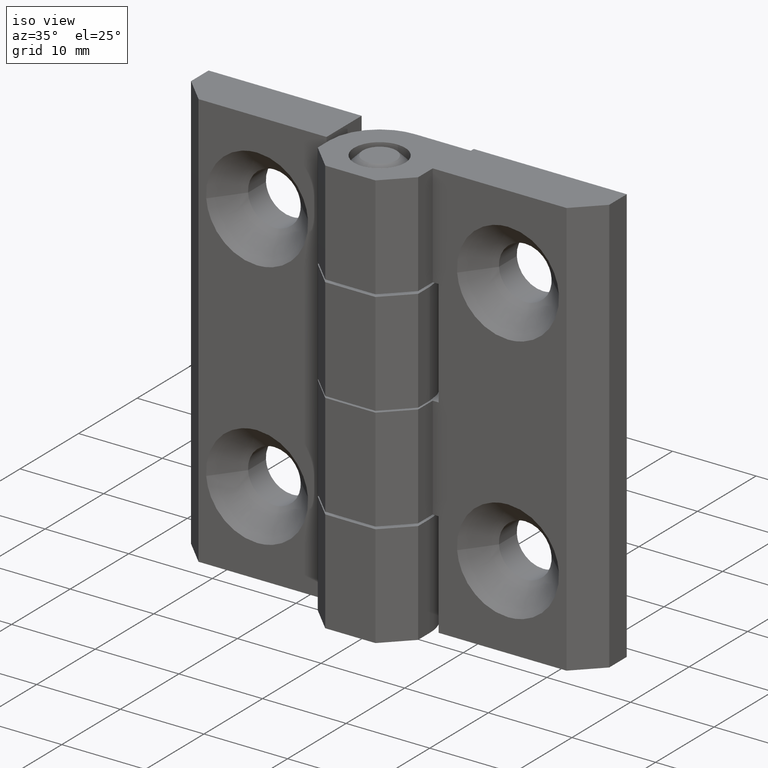
[diagram: clean part render]
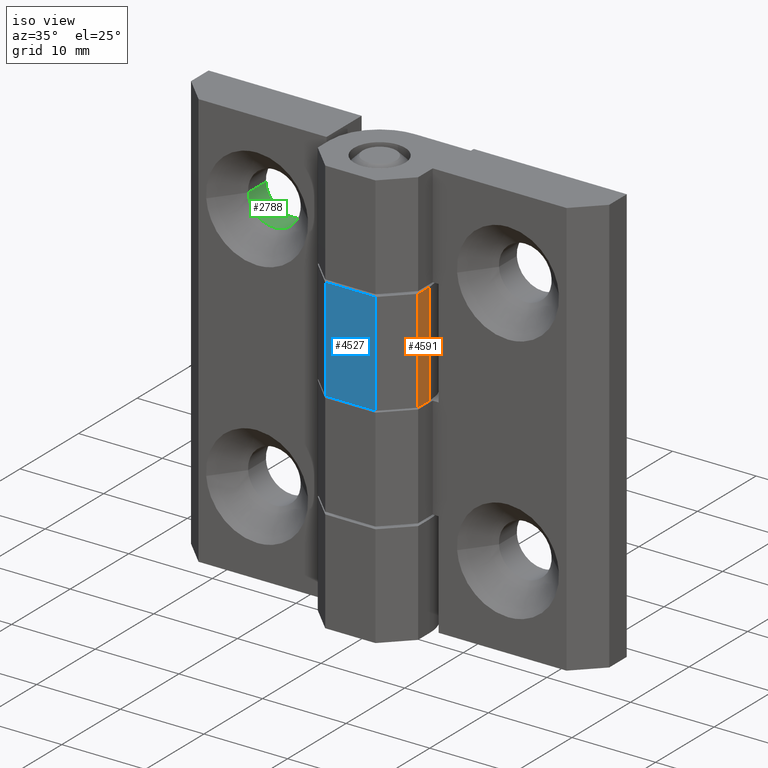
[diagram: same view with three faces highlighted in distinct colors, each labeled with its STEP entity id]
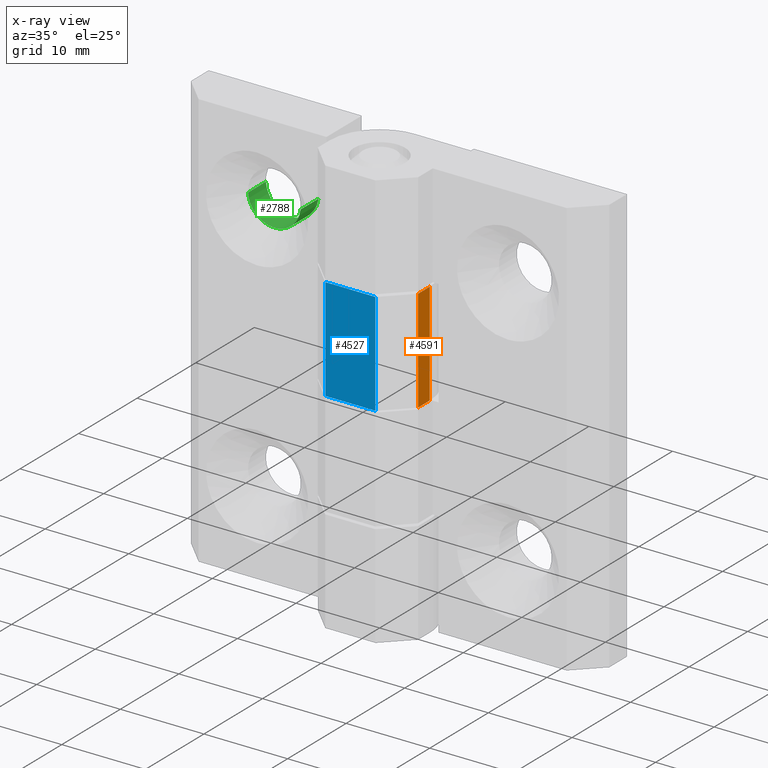
[diagram: x-ray of the same camera — body ghosted, the three highlighted faces saturated]
A machine part, iso view with three faces highlighted in distinct colors.
The next image is the same camera in x-ray (body ghosted, the three faces saturated) — at least one of them is partly hidden behind the body in this view.
Their STEP definitions:

[orange] entity #4591 — the highlighted face is a freeform B-spline surface patch.
#3967=CARTESIAN_POINT('',(6.000000997446480,0.0,25.100001192185999));
#3968=VERTEX_POINT('',#3967);
#3984=CARTESIAN_POINT('',(6.000000997446480,-2.000000094994905,25.100001192185999));
#3985=VERTEX_POINT('',#3984);
#3986=CARTESIAN_POINT('',(6.000000997446480,0.0,25.100001192185999));
#3987=CARTESIAN_POINT('',(6.000000997446480,-2.000000094994905,25.100001192185999));
#3988=QUASI_UNIFORM_CURVE('',1,(#3986,#3987),.UNSPECIFIED.,.F.,.U.);
#3989=EDGE_CURVE('',#3968,#3985,#3988,.T.);
#4181=CARTESIAN_POINT('',(6.000000997446420,-2.000000094994905,37.400001776404700));
#4182=VERTEX_POINT('',#4181);
#4188=CARTESIAN_POINT('',(6.000000997446420,0.0,37.400001776404700));
#4189=VERTEX_POINT('',#4188);
#4190=CARTESIAN_POINT('',(6.000000997446420,0.0,37.400001776404700));
#4191=CARTESIAN_POINT('',(6.000000997446420,-2.000000094994905,37.400001776404700));
#4192=QUASI_UNIFORM_CURVE('',1,(#4190,#4191),.UNSPECIFIED.,.F.,.U.);
#4193=EDGE_CURVE('',#4189,#4182,#4192,.T.);
#4551=CARTESIAN_POINT('',(6.000000997446420,-2.000000094994905,37.400001776404700));
#4552=CARTESIAN_POINT('',(6.000000997446480,-2.000000094994905,25.100001192185999));
#4553=QUASI_UNIFORM_CURVE('',1,(#4551,#4552),.UNSPECIFIED.,.F.,.U.);
#4554=EDGE_CURVE('',#4182,#3985,#4553,.T.);
#4576=CARTESIAN_POINT('',(6.000000997446420,-2.099900001990663,38.014386594763678));
#4577=CARTESIAN_POINT('',(6.000000997446420,-2.099900001990663,24.485614944209559));
#4578=CARTESIAN_POINT('',(6.000000997446420,0.099900050046912,38.014386594763678));
#4579=CARTESIAN_POINT('',(6.000000997446420,0.099900050046912,24.485614944209559));
#4580=B_SPLINE_SURFACE_WITH_KNOTS('',1,1,((#4576,#4578),(#4577,#4579)),.UNSPECIFIED.,.F.,.F.,.U.,(2,2),(2,2),(0.0,13.528771650554120),(0.0,2.199800052037575),.UNSPECIFIED.);
#4581=ORIENTED_EDGE('',*,*,#4554,.T.);
#4582=ORIENTED_EDGE('',*,*,#3989,.F.);
#4583=CARTESIAN_POINT('',(6.000000997446420,0.0,37.400001776404700));
#4584=CARTESIAN_POINT('',(6.000000997446480,0.0,25.100001192185999));
#4585=QUASI_UNIFORM_CURVE('',1,(#4583,#4584),.UNSPECIFIED.,.F.,.U.);
#4586=EDGE_CURVE('',#4189,#3968,#4585,.T.);
#4587=ORIENTED_EDGE('',*,*,#4586,.F.);
#4588=ORIENTED_EDGE('',*,*,#4193,.T.);
#4589=EDGE_LOOP('',(#4581,#4582,#4587,#4588));
#4590=FACE_OUTER_BOUND('',#4589,.T.);
#4591=ADVANCED_FACE('',(#4590),#4580,.T.);

[blue] entity #4527 — the highlighted face is a freeform B-spline surface patch.
#3991=CARTESIAN_POINT('',(3.000000854954080,-5.000000237487260,25.100001192185999));
#3992=VERTEX_POINT('',#3991);
#3998=CARTESIAN_POINT('',(-2.999999430030665,-5.000000237487260,25.100001192185999));
#3999=VERTEX_POINT('',#3998);
#4000=CARTESIAN_POINT('',(-2.999999430030665,-5.000000237487260,25.100001192185999));
#4001=CARTESIAN_POINT('',(3.000000854954080,-5.000000237487260,25.100001192185999));
#4002=QUASI_UNIFORM_CURVE('',1,(#4000,#4001),.UNSPECIFIED.,.F.,.U.);
#4003=EDGE_CURVE('',#3999,#3992,#4002,.T.);
#4167=CARTESIAN_POINT('',(-2.999999430030665,-5.000000237487250,37.400001776404700));
#4168=VERTEX_POINT('',#4167);
#4174=CARTESIAN_POINT('',(3.000000854954080,-5.000000237487250,37.400001776404700));
#4175=VERTEX_POINT('',#4174);
#4176=CARTESIAN_POINT('',(-2.999999430030665,-5.000000237487250,37.400001776404700));
#4177=CARTESIAN_POINT('',(3.000000854954080,-5.000000237487250,37.400001776404700));
#4178=QUASI_UNIFORM_CURVE('',1,(#4176,#4177),.UNSPECIFIED.,.F.,.U.);
#4179=EDGE_CURVE('',#4168,#4175,#4178,.T.);
#4487=CARTESIAN_POINT('',(-2.999999430030665,-5.000000237487250,37.400001776404700));
#4488=CARTESIAN_POINT('',(-2.999999430030665,-5.000000237487260,25.100001192185999));
#4489=QUASI_UNIFORM_CURVE('',1,(#4487,#4488),.UNSPECIFIED.,.F.,.U.);
#4490=EDGE_CURVE('',#4168,#3999,#4489,.T.);
#4512=CARTESIAN_POINT('',(-3.299699545283907,-5.000000237487250,24.485615307079460));
#4513=CARTESIAN_POINT('',(3.299701023851506,-5.000000237487250,24.485615307079460));
#4514=CARTESIAN_POINT('',(-3.299699545283907,-5.000000237487250,38.014386231893774));
#4515=CARTESIAN_POINT('',(3.299701023851506,-5.000000237487250,38.014386231893774));
#4516=B_SPLINE_SURFACE_WITH_KNOTS('',1,1,((#4512,#4514),(#4513,#4515)),.UNSPECIFIED.,.F.,.F.,.U.,(2,2),(2,2),(0.0,6.599400569135414),(0.0,13.528770924814310),.UNSPECIFIED.);
#4517=ORIENTED_EDGE('',*,*,#4490,.T.);
#4518=ORIENTED_EDGE('',*,*,#4003,.T.);
#4519=CARTESIAN_POINT('',(3.000000854954080,-5.000000237487250,37.400001776404700));
#4520=CARTESIAN_POINT('',(3.000000854954080,-5.000000237487260,25.100001192185999));
#4521=QUASI_UNIFORM_CURVE('',1,(#4519,#4520),.UNSPECIFIED.,.F.,.U.);
#4522=EDGE_CURVE('',#4175,#3992,#4521,.T.);
#4523=ORIENTED_EDGE('',*,*,#4522,.F.);
#4524=ORIENTED_EDGE('',*,*,#4179,.F.);
#4525=EDGE_LOOP('',(#4517,#4518,#4523,#4524));
#4526=FACE_OUTER_BOUND('',#4525,.T.);
#4527=ADVANCED_FACE('',(#4526),#4516,.T.);

[green] entity #2788 — the highlighted face is a freeform B-spline surface patch.
#2694=CARTESIAN_POINT('',(-11.870570471767188,3.373750160244509,39.640584707602109));
#2695=CARTESIAN_POINT('',(-12.171880782904831,3.373750160244508,37.017089809820831));
#2696=CARTESIAN_POINT('',(-14.807696335374860,3.373750160244508,36.855876424398382));
#2697=CARTESIAN_POINT('',(-17.951821810874478,3.373750160244508,36.663573472234923));
#2698=CARTESIAN_POINT('',(-18.144124763037919,3.373750160244508,39.807698947734551));
#2699=CARTESIAN_POINT('',(-11.870570471767188,6.578156562445666,39.640584707602109));
#2700=CARTESIAN_POINT('',(-12.171880782904831,6.578156562445665,37.017089809820831));
#2701=CARTESIAN_POINT('',(-14.807696335374860,6.578156562445665,36.855876424398382));
#2702=CARTESIAN_POINT('',(-17.951821810874478,6.578156562445665,36.663573472234923));
#2703=CARTESIAN_POINT('',(-18.144124763037919,6.578156562445665,39.807698947734551));
#2711=(BOUNDED_SURFACE()B_SPLINE_SURFACE(2,1,((#2694,#2699),(#2695,#2700),(#2696,#2701),(#2697,#2702),(#2698,#2703)),.UNSPECIFIED.,.F.,.F.,.U.)B_SPLINE_SURFACE_WITH_KNOTS((3,2,3),(2,2),(0.0,4.592801236530970,9.811893550770709),(0.0,3.204406402201158),.UNSPECIFIED.)GEOMETRIC_REPRESENTATION_ITEM()RATIONAL_B_SPLINE_SURFACE(((0.938140952186599,0.938140952186599),(0.742253967444162,0.742253967444162),(1.0,1.0),(0.707106781186548,0.707106781186548),(1.0,1.0)))REPRESENTATION_ITEM('')SURFACE());
#2712=CARTESIAN_POINT('',(-11.870570471779009,3.450000163866190,39.640584707499087));
#2713=VERTEX_POINT('',#2712);
#2714=CARTESIAN_POINT('',(-14.999999287538300,3.450000163866190,36.850001037819297));
#2715=VERTEX_POINT('',#2714);
#2716=CARTESIAN_POINT('',(-11.870570471779018,3.450000163866190,39.640584707499087));
#2717=CARTESIAN_POINT('',(-12.191071050974474,3.450000163866189,36.850001037819297));
#2718=CARTESIAN_POINT('',(-14.999999287538300,3.450000163866190,36.850001037819297));
#2726=(BOUNDED_CURVE()B_SPLINE_CURVE(2,(#2716,#2717,#2718),.UNSPECIFIED.,.F.,.U.)B_SPLINE_CURVE_WITH_KNOTS((3,3),(0.269767755887752,0.500000000000000),.UNSPECIFIED.)CURVE()GEOMETRIC_REPRESENTATION_ITEM()RATIONAL_B_SPLINE_CURVE((0.957343736438684,0.730266147789276,1.0))REPRESENTATION_ITEM(''));
#2727=EDGE_CURVE('',#2713,#2715,#2726,.T.);
#2728=ORIENTED_EDGE('',*,*,#2727,.F.);
#2729=CARTESIAN_POINT('',(-11.870570471780280,6.500000308733441,39.640584707488081));
#2730=VERTEX_POINT('',#2729);
#2731=CARTESIAN_POINT('',(-11.870570471779009,3.450000163866190,39.640584707499087));
#2732=CARTESIAN_POINT('',(-11.870570471780280,6.500000308733441,39.640584707488081));
#2733=QUASI_UNIFORM_CURVE('',1,(#2731,#2732),.UNSPECIFIED.,.F.,.U.);
#2734=EDGE_CURVE('',#2713,#2730,#2733,.T.);
#2735=ORIENTED_EDGE('',*,*,#2734,.T.);
#2736=CARTESIAN_POINT('',(-14.999999287538300,6.500000308733441,36.850001037819297));
#2737=VERTEX_POINT('',#2736);
#2738=CARTESIAN_POINT('',(-11.870570471780283,6.500000308733441,39.640584707488081));
#2739=CARTESIAN_POINT('',(-12.191071050994365,6.500000308733441,36.850001037819311));
#2740=CARTESIAN_POINT('',(-14.999999287538300,6.500000308733441,36.850001037819297));
#2748=(BOUNDED_CURVE()B_SPLINE_CURVE(2,(#2738,#2739,#2740),.UNSPECIFIED.,.F.,.U.)B_SPLINE_CURVE_WITH_KNOTS((3,3),(0.269767755888942,0.500000000000000),.UNSPECIFIED.)CURVE()GEOMETRIC_REPRESENTATION_ITEM()RATIONAL_B_SPLINE_CURVE((0.957343736436336,0.730266147790671,1.0))REPRESENTATION_ITEM(''));
#2749=EDGE_CURVE('',#2730,#2737,#2748,.T.);
#2750=ORIENTED_EDGE('',*,*,#2749,.T.);
#2751=CARTESIAN_POINT('',(-18.144124744602529,6.500000308733441,39.807698646318983));
#2752=VERTEX_POINT('',#2751);
#2753=CARTESIAN_POINT('',(-14.999999287538300,6.500000308733441,36.850001037819297));
#2754=CARTESIAN_POINT('',(-17.963223640045658,6.500000308733440,36.850001037819311));
#2755=CARTESIAN_POINT('',(-18.144124744602529,6.500000308733441,39.807698646318983));
#2763=(BOUNDED_CURVE()B_SPLINE_CURVE(2,(#2753,#2754,#2755),.UNSPECIFIED.,.F.,.U.)B_SPLINE_CURVE_WITH_KNOTS((3,3),(0.500000000000000,0.739332929159137),.UNSPECIFIED.)CURVE()GEOMETRIC_REPRESENTATION_ITEM()RATIONAL_B_SPLINE_CURVE((1.0,0.719604032042113,0.976071970770408))REPRESENTATION_ITEM(''));
#2764=EDGE_CURVE('',#2737,#2752,#2763,.T.);
#2765=ORIENTED_EDGE('',*,*,#2764,.T.);
#2766=CARTESIAN_POINT('',(-18.144124779369509,3.450000163866173,39.807699214754017));
#2767=VERTEX_POINT('',#2766);
#2768=CARTESIAN_POINT('',(-18.144124779369509,3.450000163866173,39.807699214754017));
#2769=CARTESIAN_POINT('',(-18.144124744602529,6.500000308733441,39.807698646318983));
#2770=QUASI_UNIFORM_CURVE('',1,(#2768,#2769),.UNSPECIFIED.,.F.,.U.);
#2771=EDGE_CURVE('',#2767,#2752,#2770,.T.);
#2772=ORIENTED_EDGE('',*,*,#2771,.F.);
#2773=CARTESIAN_POINT('',(-14.999999287538300,3.450000163866190,36.850001037819297));
#2774=CARTESIAN_POINT('',(-17.963224461380396,3.450000163866190,36.850001037819304));
#2775=CARTESIAN_POINT('',(-18.144124779369527,3.450000163866190,39.807699214754017));
#2783=(BOUNDED_CURVE()B_SPLINE_CURVE(2,(#2773,#2774,#2775),.UNSPECIFIED.,.F.,.U.)B_SPLINE_CURVE_WITH_KNOTS((3,3),(0.500000000000000,0.739332976895758),.UNSPECIFIED.)CURVE()GEOMETRIC_REPRESENTATION_ITEM()RATIONAL_B_SPLINE_CURVE((1.0,0.719603976115184,0.976072073079064))REPRESENTATION_ITEM(''));
#2784=EDGE_CURVE('',#2715,#2767,#2783,.T.);
#2785=ORIENTED_EDGE('',*,*,#2784,.F.);
#2786=EDGE_LOOP('',(#2728,#2735,#2750,#2765,#2772,#2785));
#2787=FACE_OUTER_BOUND('',#2786,.T.);
#2788=ADVANCED_FACE('',(#2787),#2711,.F.);